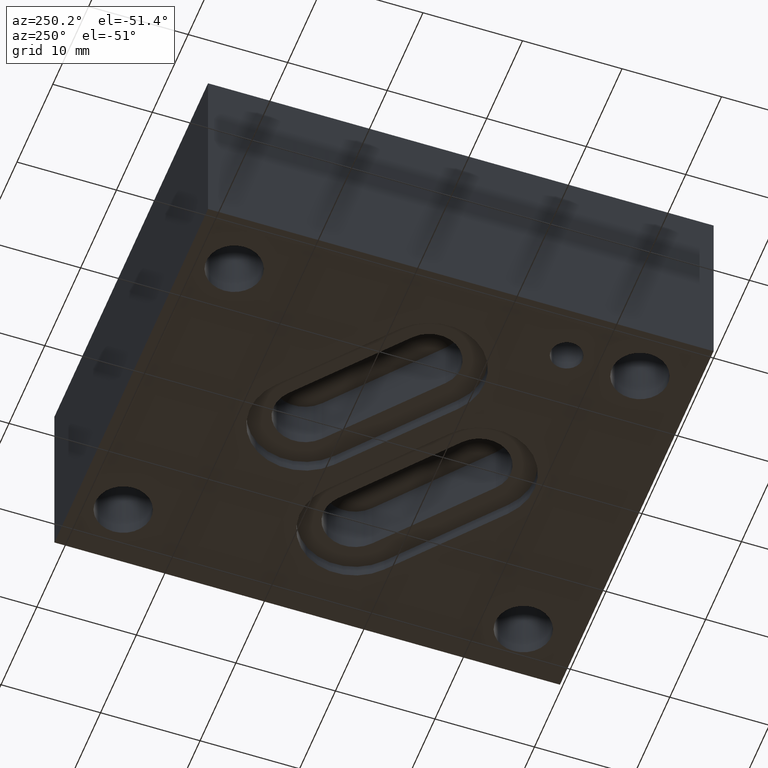
[diagram: clean part render]
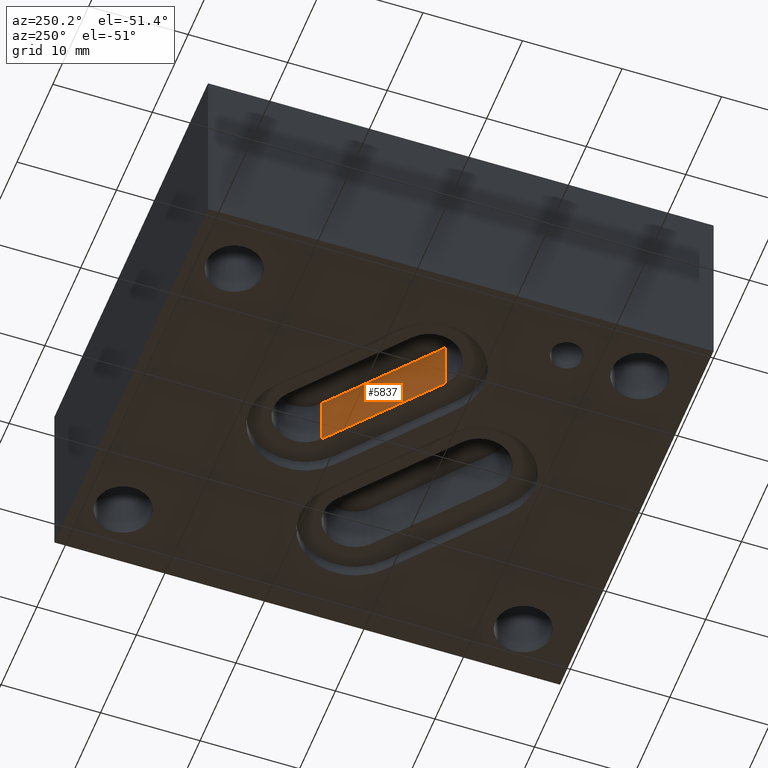
[diagram: same view with one face highlighted and labeled with its STEP entity id]
A machine part, auxiliary view. The second image highlights one B-rep face of the part: STEP entity #5837.
In plain terms, the highlighted planar face has unit normal (0.6464, -0.763, 0).
Its self-contained STEP definition (entity closure, byte-faithful):
#462=FACE_OUTER_BOUND('',#792,.T.);
#792=EDGE_LOOP('',(#5206,#5207,#5208,#5209));
#1430=LINE('',#10217,#2066);
#1431=LINE('',#10219,#2067);
#1432=LINE('',#10221,#2068);
#1433=LINE('',#10222,#2069);
#2066=VECTOR('',#7138,0.532139079564731);
#2067=VECTOR('',#7139,0.211);
#2068=VECTOR('',#7140,0.532139079564733);
#2069=VECTOR('',#7141,0.211);
#2790=VERTEX_POINT('',#10215);
#2791=VERTEX_POINT('',#10216);
#2792=VERTEX_POINT('',#10218);
#2793=VERTEX_POINT('',#10220);
#3607=EDGE_CURVE('',#2790,#2791,#1430,.T.);
#3608=EDGE_CURVE('',#2790,#2792,#1431,.T.);
#3609=EDGE_CURVE('',#2793,#2792,#1432,.T.);
#3610=EDGE_CURVE('',#2791,#2793,#1433,.T.);
#5206=ORIENTED_EDGE('',*,*,#3607,.F.);
#5207=ORIENTED_EDGE('',*,*,#3608,.T.);
#5208=ORIENTED_EDGE('',*,*,#3609,.F.);
#5209=ORIENTED_EDGE('',*,*,#3610,.F.);
#5542=PLANE('',#6083);
#5837=ADVANCED_FACE('',(#462),#5542,.F.);
#6083=AXIS2_PLACEMENT_3D('',#10214,#7136,#7137);
#7136=DIRECTION('center_axis',(0.646447542024874,-0.762958436227032,0.));
#7137=DIRECTION('ref_axis',(0.,0.,-1.));
#7138=DIRECTION('',(0.762958436227032,0.646447542024874,0.));
#7139=DIRECTION('',(0.,0.,1.));
#7140=DIRECTION('',(-0.762958436227032,-0.646447542024874,0.));
#7141=DIRECTION('',(0.,0.,1.));
#10214=CARTESIAN_POINT('Origin',(0.92480594275311,1.21663019547162,0.));
#10215=CARTESIAN_POINT('',(0.518805942753109,0.872630195471621,0.052));
#10216=CARTESIAN_POINT('',(0.924805942753109,1.21663019547162,0.052));
#10217=CARTESIAN_POINT('',(0.518805942753109,0.872630195471621,0.052));
#10218=CARTESIAN_POINT('',(0.518805942753109,0.872630195471621,0.263));
#10219=CARTESIAN_POINT('',(0.518805942753109,0.872630195471621,0.052));
#10220=CARTESIAN_POINT('',(0.92480594275311,1.21663019547162,0.263));
#10221=CARTESIAN_POINT('',(0.92480594275311,1.21663019547162,0.263));
#10222=CARTESIAN_POINT('',(0.924805942753109,1.21663019547162,0.052));